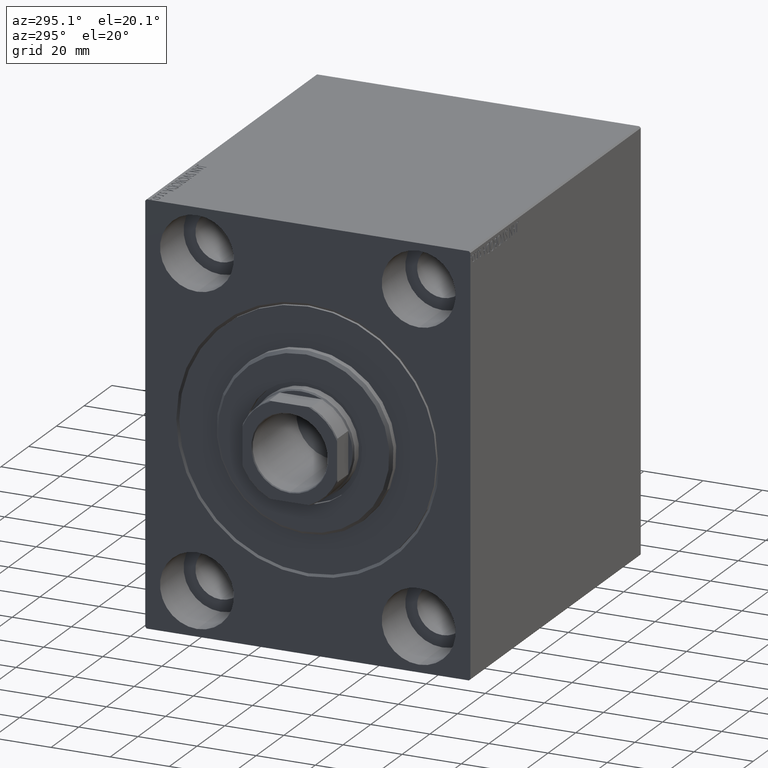
[diagram: clean part render]
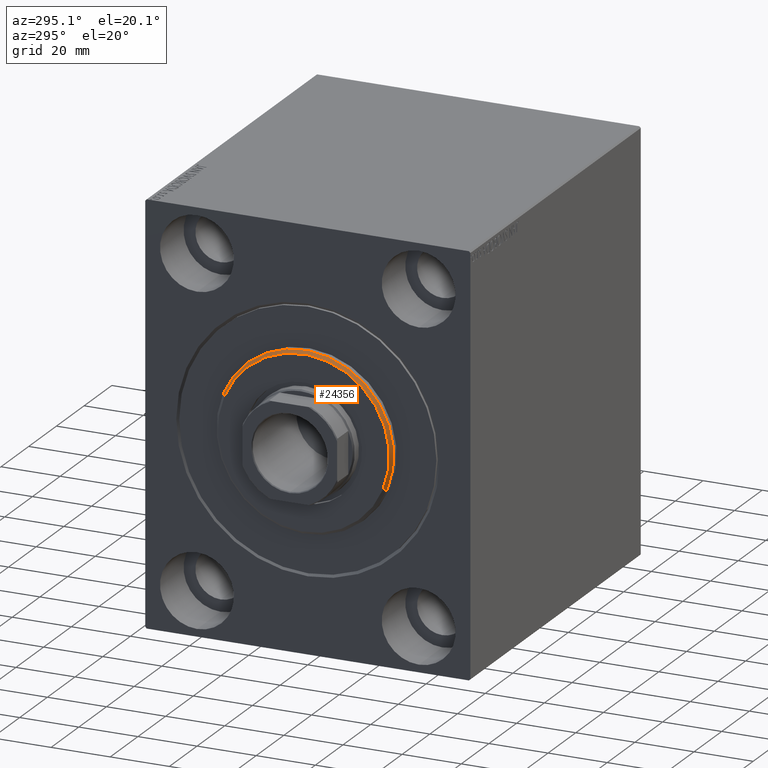
[diagram: same view with one face highlighted and labeled with its STEP entity id]
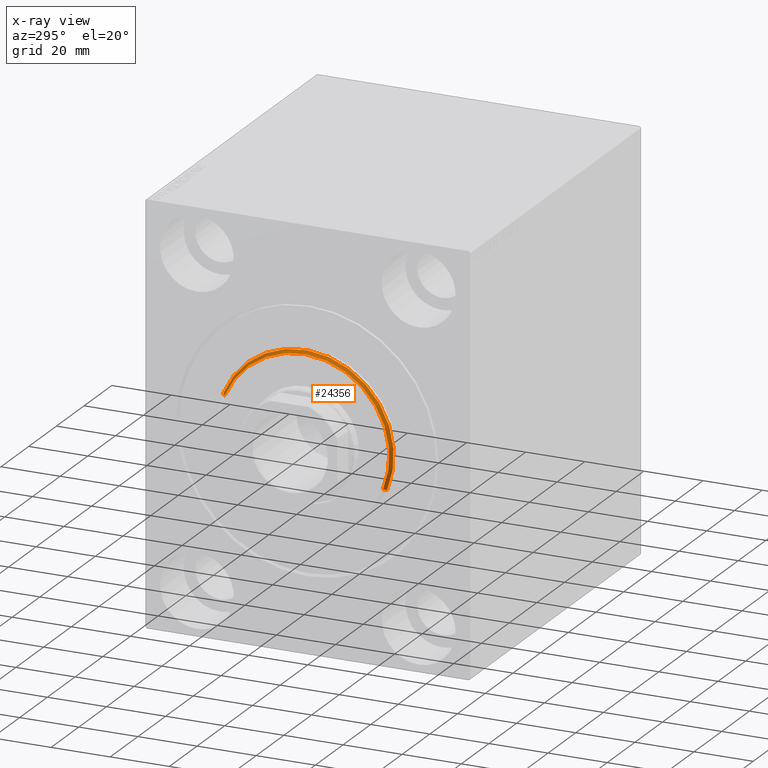
[diagram: x-ray of the same camera — body ghosted, the highlighted face saturated]
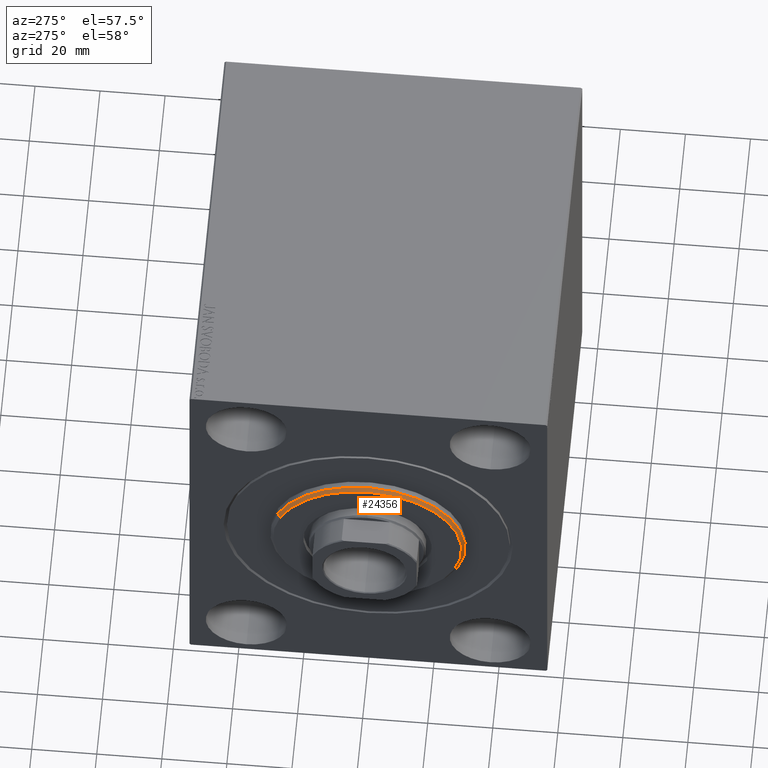
[diagram: same view with one face highlighted and labeled with its STEP entity id]
A machine part, auxiliary view. The second image highlights one B-rep face of the part: STEP entity #24356.
The next image is the same camera in x-ray: the body ghosted, the highlighted face saturated — about 0% of this face is hidden behind the body in this view.
A second angle (auxiliary view) of the same face is appended — the face is thin or edge-on in the first view.
In plain terms, the highlighted conical surface has half-angle 45 deg.
Its self-contained STEP definition (entity closure, byte-faithful):
#3 = DIRECTION ( 'NONE',  ( 1.000000000000000000, -0.000000000000000000, 0.000000000000000000 ) ) ;
#147 = CIRCLE ( 'NONE', #32853, 30.00000000000000000 ) ;
#2850 = VECTOR ( 'NONE', #23179, 1000.000000000000000 ) ;
#3189 = CARTESIAN_POINT ( 'NONE',  ( 3.000000000000000000, 0.000000000000000000, 0.000000000000000000 ) ) ;
#3941 = CARTESIAN_POINT ( 'NONE',  ( 3.000000000000000000, 3.551475717527327185E-15, -29.00000000000002132 ) ) ;
#9591 = AXIS2_PLACEMENT_3D ( 'NONE', #3189, #10094, #23255 ) ;
#10094 = DIRECTION ( 'NONE',  ( -1.000000000000000000, 0.000000000000000000, 0.000000000000000000 ) ) ;
#10318 = EDGE_CURVE ( 'NONE', #36300, #32646, #33835, .T. ) ;
#12958 = DIRECTION ( 'NONE',  ( 0.000000000000000000, 0.000000000000000000, -1.000000000000000000 ) ) ;
#13394 = CARTESIAN_POINT ( 'NONE',  ( 3.000000000000000000, 0.000000000000000000, 0.000000000000000000 ) ) ;
#14502 = CARTESIAN_POINT ( 'NONE',  ( 2.000000000000019984, 0.000000000000000000, 0.000000000000000000 ) ) ;
#14922 = CARTESIAN_POINT ( 'NONE',  ( 2.000000000000019984, 0.000000000000000000, 30.00000000000000000 ) ) ;
#15149 = EDGE_CURVE ( 'NONE', #37786, #32646, #147, .T. ) ;
#15825 = ORIENTED_EDGE ( 'NONE', *, *, #10318, .T. ) ;
#16856 = EDGE_CURVE ( 'NONE', #17106, #37786, #24654, .T. ) ;
#17106 = VERTEX_POINT ( 'NONE', #24166 ) ;
#18648 = VECTOR ( 'NONE', #34881, 1000.000000000000000 ) ;
#18732 = ORIENTED_EDGE ( 'NONE', *, *, #16856, .F. ) ;
#19139 = CARTESIAN_POINT ( 'NONE',  ( 2.000000000000019984, 3.673940397442059178E-15, -30.00000000000000000 ) ) ;
#20526 = DIRECTION ( 'NONE',  ( 0.000000000000000000, 0.000000000000000000, -1.000000000000000000 ) ) ;
#20725 = CARTESIAN_POINT ( 'NONE',  ( 3.000000000000000000, 0.000000000000000000, 29.00000000000002132 ) ) ;
#23179 = DIRECTION ( 'NONE',  ( -0.7071067811865487940, 0.000000000000000000, 0.7071067811865463515 ) ) ;
#23255 = DIRECTION ( 'NONE',  ( 0.000000000000000000, 0.000000000000000000, 1.000000000000000000 ) ) ;
#24166 = CARTESIAN_POINT ( 'NONE',  ( 3.000000000000000000, 3.612708057484693181E-15, -29.00000000000002132 ) ) ;
#24356 = ADVANCED_FACE ( 'NONE', ( #30566 ), #28791, .T. ) ;
#24509 = EDGE_CURVE ( 'NONE', #36300, #17106, #35861, .T. ) ;
#24654 = LINE ( 'NONE', #3941, #18648 ) ;
#26947 = CARTESIAN_POINT ( 'NONE',  ( 3.000000000000000000, 0.000000000000000000, 29.00000000000002132 ) ) ;
#28791 = CONICAL_SURFACE ( 'NONE', #9591, 29.00000000000002132, 0.7853981633974466137 ) ;
#30566 = FACE_OUTER_BOUND ( 'NONE', #32024, .T. ) ;
#32024 = EDGE_LOOP ( 'NONE', ( #18732, #32180, #15825, #36173 ) ) ;
#32180 = ORIENTED_EDGE ( 'NONE', *, *, #24509, .F. ) ;
#32646 = VERTEX_POINT ( 'NONE', #14922 ) ;
#32853 = AXIS2_PLACEMENT_3D ( 'NONE', #14502, #34967, #20526 ) ;
#33835 = LINE ( 'NONE', #26947, #2850 ) ;
#34881 = DIRECTION ( 'NONE',  ( -0.7071067811865487940, 8.659560562354918067E-17, -0.7071067811865463515 ) ) ;
#34967 = DIRECTION ( 'NONE',  ( -1.000000000000000000, 0.000000000000000000, 0.000000000000000000 ) ) ;
#35861 = CIRCLE ( 'NONE', #41557, 29.00000000000002132 ) ;
#36173 = ORIENTED_EDGE ( 'NONE', *, *, #15149, .F. ) ;
#36300 = VERTEX_POINT ( 'NONE', #20725 ) ;
#37786 = VERTEX_POINT ( 'NONE', #19139 ) ;
#41557 = AXIS2_PLACEMENT_3D ( 'NONE', #13394, #3, #12958 ) ;